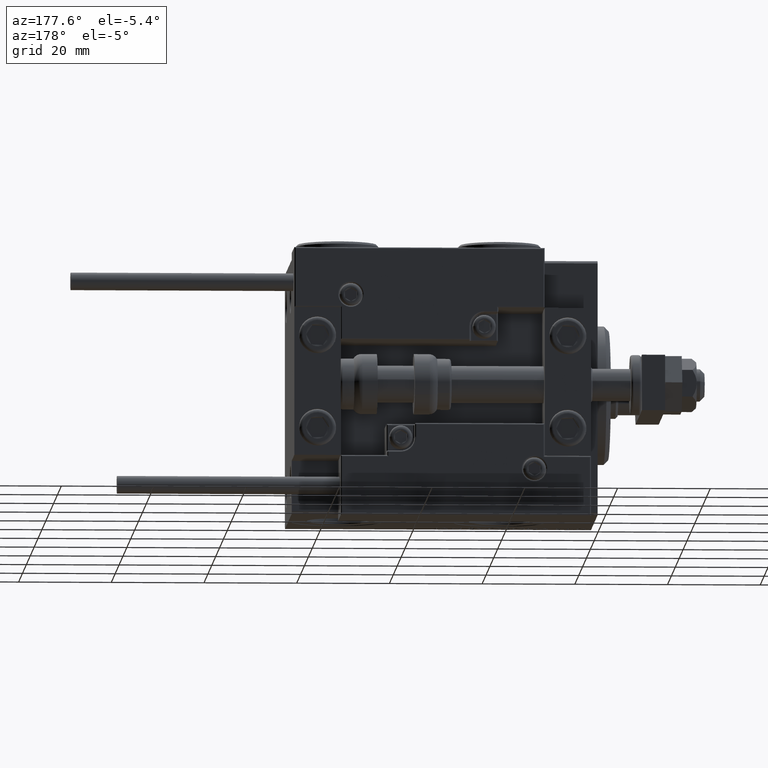
[diagram: clean part render]
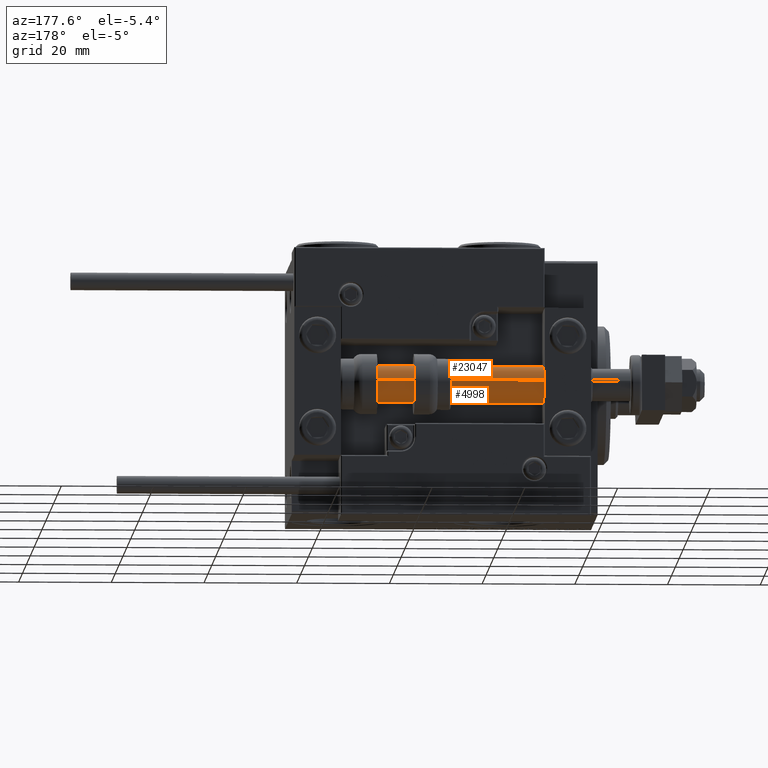
[diagram: same view with one multi-face feature highlighted, each face labeled with its STEP entity id]
A machine part, auxiliary view. The highlighted faces form ONE feature: a constant-radius fillet chain: 2 tangent blend faces with common blend radius 4 mm. The faces share edges in the B-rep.
Their STEP definitions:
[1] entity #4998 (Cylinder):
#117 = ORIENTED_EDGE ( 'NONE', *, *, #34257, .F. ) ;
#684 = EDGE_CURVE ( 'NONE', #747, #29622, #13957, .T. ) ;
#747 = VERTEX_POINT ( 'NONE', #35446 ) ;
#3966 = EDGE_CURVE ( 'NONE', #30679, #50237, #25848, .T. ) ;
#4998 = ADVANCED_FACE ( 'NONE', ( #17570 ), #42236, .T. ) ;
#5613 = DIRECTION ( 'NONE',  ( -0.000000000000000000, -0.000000000000000000, -1.000000000000000000 ) ) ;
#5910 = AXIS2_PLACEMENT_3D ( 'NONE', #39385, #27174, #14179 ) ;
#12423 = AXIS2_PLACEMENT_3D ( 'NONE', #38799, #5613, #33513 ) ;
#13912 = DIRECTION ( 'NONE',  ( -0.000000000000000000, -0.000000000000000000, -1.000000000000000000 ) ) ;
#13957 = LINE ( 'NONE', #49792, #14775 ) ;
#14179 = DIRECTION ( 'NONE',  ( 1.000000000000000000, 0.000000000000000000, 0.000000000000000000 ) ) ;
#14775 = VECTOR ( 'NONE', #30142, 1000.000000000000000 ) ;
#17570 = FACE_OUTER_BOUND ( 'NONE', #43805, .T. ) ;
#22536 = VECTOR ( 'NONE', #13912, 1000.000000000000000 ) ;
#25095 = CARTESIAN_POINT ( 'NONE',  ( 4.000000000000000000, 4.898587196589412829E-16, 2.000000000000029310 ) ) ;
#25848 = LINE ( 'NONE', #42038, #22536 ) ;
#26112 = ORIENTED_EDGE ( 'NONE', *, *, #3966, .F. ) ;
#27087 = CARTESIAN_POINT ( 'NONE',  ( 4.000000000000000000, 4.898587196589412829E-16, 66.00000000000000000 ) ) ;
#27174 = DIRECTION ( 'NONE',  ( -0.000000000000000000, -0.000000000000000000, 1.000000000000000000 ) ) ;
#27260 = DIRECTION ( 'NONE',  ( 1.000000000000000000, 0.000000000000000000, 0.000000000000000000 ) ) ;
#27721 = CIRCLE ( 'NONE', #28550, 4.000000000000000000 ) ;
#28550 = AXIS2_PLACEMENT_3D ( 'NONE', #35219, #50611, #27260 ) ;
#29622 = VERTEX_POINT ( 'NONE', #34523 ) ;
#30142 = DIRECTION ( 'NONE',  ( -0.000000000000000000, -0.000000000000000000, -1.000000000000000000 ) ) ;
#30679 = VERTEX_POINT ( 'NONE', #27087 ) ;
#33513 = DIRECTION ( 'NONE',  ( -1.000000000000000000, 0.000000000000000000, 0.000000000000000000 ) ) ;
#34257 = EDGE_CURVE ( 'NONE', #747, #30679, #27721, .T. ) ;
#34523 = CARTESIAN_POINT ( 'NONE',  ( -4.000000000000000000, 0.000000000000000000, 2.000000000000029310 ) ) ;
#35219 = CARTESIAN_POINT ( 'NONE',  ( 0.000000000000000000, 0.000000000000000000, 66.00000000000000000 ) ) ;
#35446 = CARTESIAN_POINT ( 'NONE',  ( -4.000000000000000000, 0.000000000000000000, 66.00000000000000000 ) ) ;
#38131 = CIRCLE ( 'NONE', #5910, 4.000000000000000000 ) ;
#38799 = CARTESIAN_POINT ( 'NONE',  ( 0.000000000000000000, 0.000000000000000000, 66.00000000000000000 ) ) ;
#39385 = CARTESIAN_POINT ( 'NONE',  ( 0.000000000000000000, 0.000000000000000000, 2.000000000000029310 ) ) ;
#39469 = EDGE_CURVE ( 'NONE', #29622, #50237, #38131, .T. ) ;
#41497 = ORIENTED_EDGE ( 'NONE', *, *, #684, .T. ) ;
#42038 = CARTESIAN_POINT ( 'NONE',  ( 4.000000000000000000, 4.898587196589412829E-16, 66.00000000000000000 ) ) ;
#42236 = CYLINDRICAL_SURFACE ( 'NONE', #12423, 4.000000000000000000 ) ;
#43805 = EDGE_LOOP ( 'NONE', ( #26112, #117, #41497, #45518 ) ) ;
#45518 = ORIENTED_EDGE ( 'NONE', *, *, #39469, .T. ) ;
#49792 = CARTESIAN_POINT ( 'NONE',  ( -4.000000000000000000, 0.000000000000000000, 66.00000000000000000 ) ) ;
#50237 = VERTEX_POINT ( 'NONE', #25095 ) ;
#50611 = DIRECTION ( 'NONE',  ( 0.000000000000000000, 0.000000000000000000, 1.000000000000000000 ) ) ;
[2] entity #23047 (Cylinder):
#101 = FACE_OUTER_BOUND ( 'NONE', #49855, .T. ) ;
#684 = EDGE_CURVE ( 'NONE', #747, #29622, #13957, .T. ) ;
#747 = VERTEX_POINT ( 'NONE', #35446 ) ;
#3797 = CARTESIAN_POINT ( 'NONE',  ( 0.000000000000000000, 0.000000000000000000, 2.000000000000029310 ) ) ;
#3966 = EDGE_CURVE ( 'NONE', #30679, #50237, #25848, .T. ) ;
#9195 = EDGE_CURVE ( 'NONE', #50237, #29622, #38762, .T. ) ;
#13912 = DIRECTION ( 'NONE',  ( -0.000000000000000000, -0.000000000000000000, -1.000000000000000000 ) ) ;
#13957 = LINE ( 'NONE', #49792, #14775 ) ;
#14775 = VECTOR ( 'NONE', #30142, 1000.000000000000000 ) ;
#15510 = DIRECTION ( 'NONE',  ( -1.000000000000000000, 0.000000000000000000, 0.000000000000000000 ) ) ;
#18361 = AXIS2_PLACEMENT_3D ( 'NONE', #37790, #28518, #21089 ) ;
#20265 = DIRECTION ( 'NONE',  ( 1.000000000000000000, 0.000000000000000000, 0.000000000000000000 ) ) ;
#20279 = DIRECTION ( 'NONE',  ( -0.000000000000000000, -0.000000000000000000, -1.000000000000000000 ) ) ;
#21089 = DIRECTION ( 'NONE',  ( 1.000000000000000000, 0.000000000000000000, 0.000000000000000000 ) ) ;
#22150 = AXIS2_PLACEMENT_3D ( 'NONE', #23742, #20279, #15510 ) ;
#22486 = CIRCLE ( 'NONE', #18361, 4.000000000000000000 ) ;
#22536 = VECTOR ( 'NONE', #13912, 1000.000000000000000 ) ;
#23047 = ADVANCED_FACE ( 'NONE', ( #101 ), #24258, .T. ) ;
#23742 = CARTESIAN_POINT ( 'NONE',  ( 0.000000000000000000, 0.000000000000000000, 66.00000000000000000 ) ) ;
#24258 = CYLINDRICAL_SURFACE ( 'NONE', #22150, 4.000000000000000000 ) ;
#25095 = CARTESIAN_POINT ( 'NONE',  ( 4.000000000000000000, 4.898587196589412829E-16, 2.000000000000029310 ) ) ;
#25848 = LINE ( 'NONE', #42038, #22536 ) ;
#27087 = CARTESIAN_POINT ( 'NONE',  ( 4.000000000000000000, 4.898587196589412829E-16, 66.00000000000000000 ) ) ;
#28518 = DIRECTION ( 'NONE',  ( 0.000000000000000000, 0.000000000000000000, 1.000000000000000000 ) ) ;
#29622 = VERTEX_POINT ( 'NONE', #34523 ) ;
#30045 = EDGE_CURVE ( 'NONE', #30679, #747, #22486, .T. ) ;
#30142 = DIRECTION ( 'NONE',  ( -0.000000000000000000, -0.000000000000000000, -1.000000000000000000 ) ) ;
#30658 = ORIENTED_EDGE ( 'NONE', *, *, #9195, .T. ) ;
#30679 = VERTEX_POINT ( 'NONE', #27087 ) ;
#33686 = AXIS2_PLACEMENT_3D ( 'NONE', #3797, #35939, #20265 ) ;
#34523 = CARTESIAN_POINT ( 'NONE',  ( -4.000000000000000000, 0.000000000000000000, 2.000000000000029310 ) ) ;
#34673 = ORIENTED_EDGE ( 'NONE', *, *, #684, .F. ) ;
#35087 = ORIENTED_EDGE ( 'NONE', *, *, #30045, .F. ) ;
#35446 = CARTESIAN_POINT ( 'NONE',  ( -4.000000000000000000, 0.000000000000000000, 66.00000000000000000 ) ) ;
#35939 = DIRECTION ( 'NONE',  ( -0.000000000000000000, -0.000000000000000000, 1.000000000000000000 ) ) ;
#37790 = CARTESIAN_POINT ( 'NONE',  ( 0.000000000000000000, 0.000000000000000000, 66.00000000000000000 ) ) ;
#38762 = CIRCLE ( 'NONE', #33686, 4.000000000000000000 ) ;
#42038 = CARTESIAN_POINT ( 'NONE',  ( 4.000000000000000000, 4.898587196589412829E-16, 66.00000000000000000 ) ) ;
#48507 = ORIENTED_EDGE ( 'NONE', *, *, #3966, .T. ) ;
#49792 = CARTESIAN_POINT ( 'NONE',  ( -4.000000000000000000, 0.000000000000000000, 66.00000000000000000 ) ) ;
#49855 = EDGE_LOOP ( 'NONE', ( #35087, #48507, #30658, #34673 ) ) ;
#50237 = VERTEX_POINT ( 'NONE', #25095 ) ;